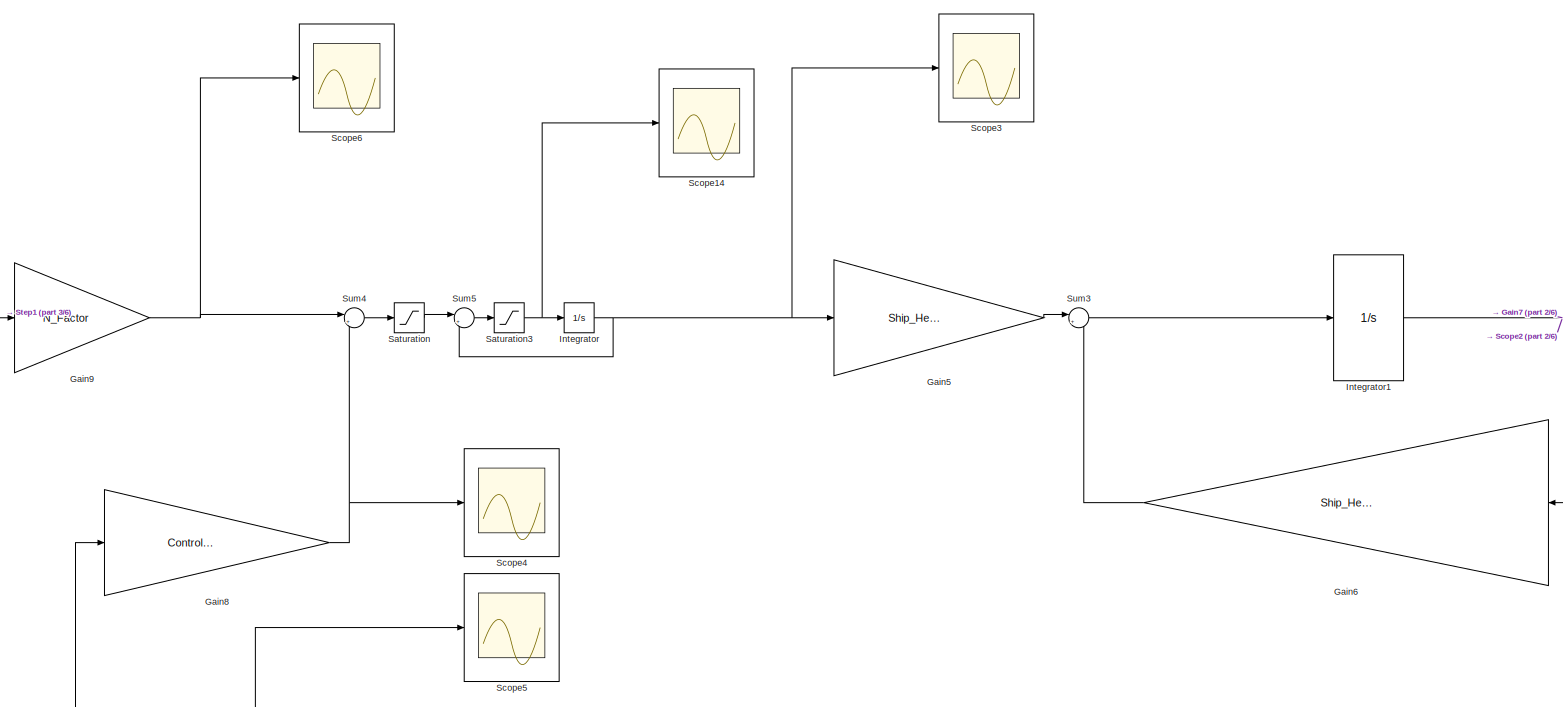
[diagram: root canvas - part 1/6, top center region]
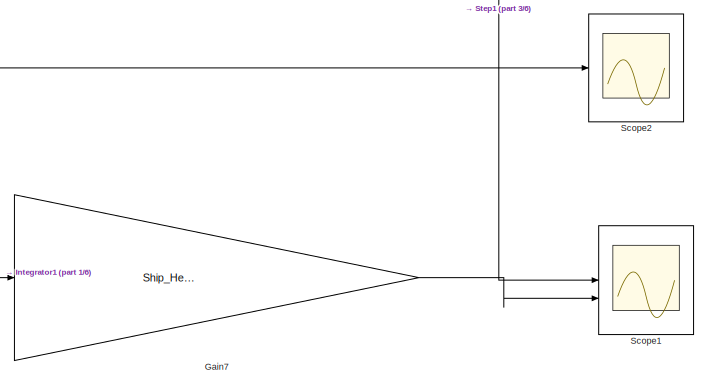
[diagram: root canvas - part 2/6, top right region]
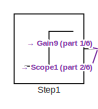
[diagram: root canvas - part 3/6, top left region]
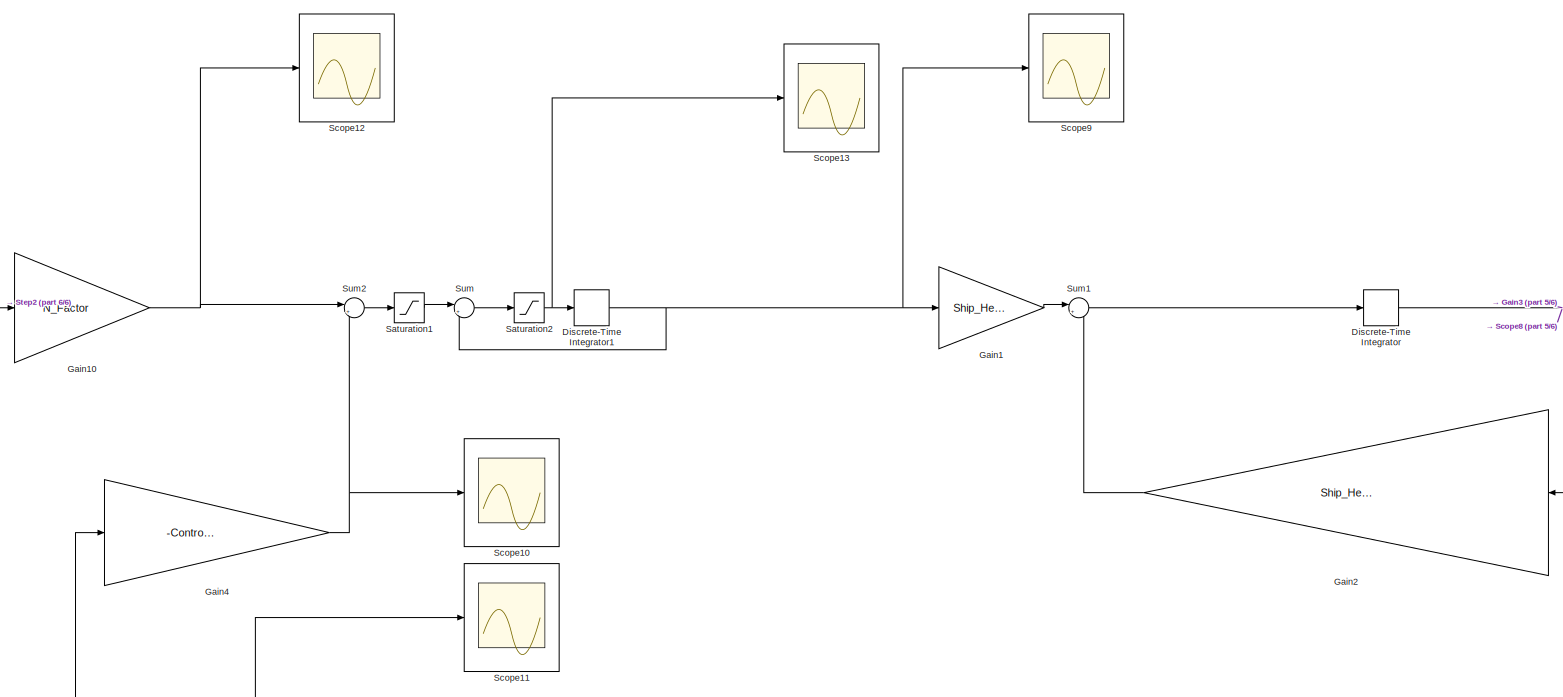
[diagram: root canvas - part 4/6, bottom center region]
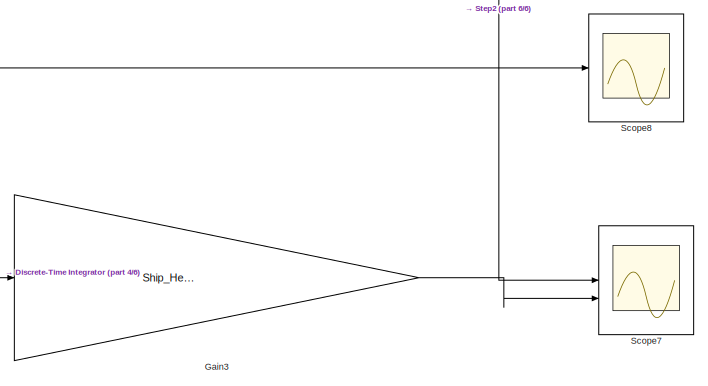
[diagram: root canvas - part 5/6, bottom right region]
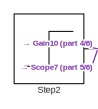
[diagram: root canvas - part 6/6, bottom left region]
MODEL slx_c05948c54876
KIND model
CONFIG AbsTol = auto
CONFIG EnableMultiTasking = off
CONFIG FixedStep = auto
CONFIG MaxStep = auto
CONFIG MinStep = auto
CONFIG RelTol = 1e-3
CONFIG SampleTimeConstraint = Unconstrained
CONFIG SolverName = VariableStepAuto
CONFIG StartTime = 0.0
CONFIG StopTime = 80
BLOCK [DiscreteIntegrator] Discrete-Time Integrator
  ICPrevOutput = DiscIntNeverNeededParam
  ICPrevScaledInput = DiscIntNeverNeededParam
  InitialCondition = [0;0]
  InitialConditionSetting = Auto
  SampleTime = T_s
BLOCK [DiscreteIntegrator] Discrete-Time Integrator1
  ICPrevOutput = DiscIntNeverNeededParam
  ICPrevScaledInput = DiscIntNeverNeededParam
  InitialConditionSetting = Auto
  SampleTime = T_s
BLOCK [Gain] Gain1
  Gain = Ship_Heading_To_Rudder_State_Space_Continuous.B
  Multiplication = Matrix(K*u)
BLOCK [Gain] Gain10
  Gain = N_Factor
BLOCK [Gain] Gain2
  Gain = Ship_Heading_To_Rudder_State_Space_Continuous.A
  Multiplication = Matrix(K*u)
BLOCK [Gain] Gain3
  Gain = Ship_Heading_To_Rudder_State_Space_Continuous.C
  Multiplication = Matrix(K*u)
BLOCK [Gain] Gain4
  Gain = -Controller_Continuous
  Multiplication = Matrix(K*u)
BLOCK [Gain] Gain5
  Gain = Ship_Heading_To_Rudder_State_Space_Continuous.B
  Multiplication = Matrix(K*u)
BLOCK [Gain] Gain6
  Gain = Ship_Heading_To_Rudder_State_Space_Continuous.A
  Multiplication = Matrix(K*u)
BLOCK [Gain] Gain7
  Gain = Ship_Heading_To_Rudder_State_Space_Continuous.C
  Multiplication = Matrix(K*u)
BLOCK [Gain] Gain8
  Gain = Controller_Continuous
  Multiplication = Matrix(K*u)
BLOCK [Gain] Gain9
  Gain = N_Factor
BLOCK [Integrator] Integrator
BLOCK [Integrator] Integrator1
  InitialCondition = [0;0]
BLOCK [Saturate] Saturation
  LowerLimit = -35*(pi/180)
  UpperLimit = +35*(pi/180)
BLOCK [Saturate] Saturation1
  LowerLimit = -35*(pi/180)
  UpperLimit = +35*(pi/180)
BLOCK [Saturate] Saturation2
  LowerLimit = -1*(pi/180)
  UpperLimit = 1*(pi/180)
BLOCK [Saturate] Saturation3
  LowerLimit = -7*(pi/180)
  UpperLimit = 7*(pi/180)
BLOCK [Scope] Scope1
  Floating = off
  NumInputPorts = 2
  ScopeSpecificationString = Simulink.scopes.TimeScopeBlockCfg('CurrentConfiguration', extmgr.ConfigurationSet(extmgr.Configuration('Core','General UI',true),extmgr.Configuration('Core','Source UI',true),extmgr.Configuration('Sources','WiredSimulink',true,'DataLoggingVariableName','ScopeData1'),extmgr.Configuration('Visuals','Time Domain',true,'SerializedDisplays',{struct('MinYLimReal','-0.11174','MaxYLimReal','1.00566','YLab...<+1536ch>
BLOCK [Scope] Scope10
  Floating = off
  NumInputPorts = 1
  ScopeSpecificationString = Simulink.scopes.TimeScopeBlockCfg('CurrentConfiguration', extmgr.ConfigurationSet(extmgr.Configuration('Core','General UI',true),extmgr.Configuration('Core','Source UI',true),extmgr.Configuration('Sources','WiredSimulink',true,'DataLoggingVariableName','ScopeData1'),extmgr.Configuration('Visuals','Time Domain',true,'SerializedDisplays',{struct('MinYLimReal','-32.80489','MaxYLimReal','3.64499','YLa...<+1532ch>
BLOCK [Scope] Scope11
  Floating = off
  NumInputPorts = 1
  ScopeSpecificationString = Simulink.scopes.TimeScopeBlockCfg('CurrentConfiguration', extmgr.ConfigurationSet(extmgr.Configuration('Core','General UI',true),extmgr.Configuration('Core','Source UI',true),extmgr.Configuration('Sources','WiredSimulink',true,'DataLoggingVariableName','ScopeData2'),extmgr.Configuration('Visuals','Time Domain',true,'SerializedDisplays',{struct('MinYLimReal','-0.98162','MaxYLimReal','0.10907','YLab...<+1552ch>
BLOCK [Scope] Scope12
  Floating = off
  NumInputPorts = 1
  ScopeSpecificationString = Simulink.scopes.TimeScopeBlockCfg('CurrentConfiguration', extmgr.ConfigurationSet(extmgr.Configuration('Core','General UI',true),extmgr.Configuration('Core','Source UI',true),extmgr.Configuration('Sources','WiredSimulink',true,'DataLoggingVariableName','ScopeData3'),extmgr.Configuration('Visuals','Time Domain',true,'SerializedDisplays',{struct('MinYLimReal','-0.0589','MaxYLimReal','0.00654','YLabe...<+1525ch>
BLOCK [Scope] Scope13
  Floating = off
  NumInputPorts = 1
  ScopeSpecificationString = Simulink.scopes.TimeScopeBlockCfg('CurrentConfiguration', extmgr.ConfigurationSet(extmgr.Configuration('Core','General UI',true),extmgr.Configuration('Core','Source UI',true),extmgr.Configuration('Sources','WiredSimulink',true,'DataLoggingVariableName','ScopeData7'),extmgr.Configuration('Visuals','Time Domain',true,'SerializedDisplays',{struct('MinYLimReal','-0.02099','MaxYLimReal','0.01438','YLab...<+1534ch>
BLOCK [Scope] Scope14
  Floating = off
  NumInputPorts = 1
  ScopeSpecificationString = Simulink.scopes.TimeScopeBlockCfg('CurrentConfiguration', extmgr.ConfigurationSet(extmgr.Configuration('Core','General UI',true),extmgr.Configuration('Core','Source UI',true),extmgr.Configuration('Sources','WiredSimulink',true,'DataLoggingVariableName','ScopeData8'),extmgr.Configuration('Visuals','Time Domain',true,'SerializedDisplays',{struct('MinYLimReal','-0.15272','MaxYLimReal','0.15272','YLab...<+1534ch>
BLOCK [Scope] Scope2
  Floating = off
  NumInputPorts = 1
  ScopeSpecificationString = Simulink.scopes.TimeScopeBlockCfg('CurrentConfiguration', extmgr.ConfigurationSet(extmgr.Configuration('Core','General UI',true),extmgr.Configuration('Core','Source UI',true),extmgr.Configuration('Sources','WiredSimulink',true,'DataLoggingVariableName','ScopeData2'),extmgr.Configuration('Visuals','Time Domain',true,'SerializedDisplays',{struct('MinYLimReal','-0.14216','MaxYLimReal','1.00904','YLab...<+1533ch>
BLOCK [Scope] Scope3
  Floating = off
  NumInputPorts = 1
  ScopeSpecificationString = Simulink.scopes.TimeScopeBlockCfg('CurrentConfiguration', extmgr.ConfigurationSet(extmgr.Configuration('Core','General UI',true),extmgr.Configuration('Core','Source UI',true),extmgr.Configuration('Sources','WiredSimulink',true),extmgr.Configuration('Visuals','Time Domain',true,'SerializedDisplays',{struct('MinYLimReal','-0.18844','MaxYLimReal','0.24649','YLabelReal','','MinYLimMag','0.00000','MaxY...<+1494ch>
BLOCK [Scope] Scope4
  Floating = off
  NumInputPorts = 1
  ScopeSpecificationString = Simulink.scopes.TimeScopeBlockCfg('CurrentConfiguration', extmgr.ConfigurationSet(extmgr.Configuration('Core','General UI',true),extmgr.Configuration('Core','Source UI',true),extmgr.Configuration('Sources','WiredSimulink',true,'DataLoggingVariableName','ScopeData3'),extmgr.Configuration('Visuals','Time Domain',true,'SerializedDisplays',{struct('MinYLimReal','-32.80489','MaxYLimReal','3.64499','YLa...<+1532ch>
BLOCK [Scope] Scope5
  Floating = off
  NumInputPorts = 1
  ScopeSpecificationString = Simulink.scopes.TimeScopeBlockCfg('CurrentConfiguration', extmgr.ConfigurationSet(extmgr.Configuration('Core','General UI',true),extmgr.Configuration('Core','Source UI',true),extmgr.Configuration('Sources','WiredSimulink',true,'DataLoggingVariableName','ScopeData4'),extmgr.Configuration('Visuals','Time Domain',true,'SerializedDisplays',{struct('MinYLimReal','-0.98162','MaxYLimReal','0.10907','YLab...<+1552ch>
BLOCK [Scope] Scope6
  Floating = off
  NumInputPorts = 1
  ScopeSpecificationString = Simulink.scopes.TimeScopeBlockCfg('CurrentConfiguration', extmgr.ConfigurationSet(extmgr.Configuration('Core','General UI',true),extmgr.Configuration('Core','Source UI',true),extmgr.Configuration('Sources','WiredSimulink',true,'DataLoggingVariableName','ScopeData5'),extmgr.Configuration('Visuals','Time Domain',true,'SerializedDisplays',{struct('MinYLimReal','-31.04559','MaxYLimReal','3.44951','YLa...<+1532ch>
BLOCK [Scope] Scope7
  Floating = off
  NumInputPorts = 2
  ScopeSpecificationString = Simulink.scopes.TimeScopeBlockCfg('CurrentConfiguration', extmgr.ConfigurationSet(extmgr.Configuration('Core','General UI',true),extmgr.Configuration('Core','Source UI',true),extmgr.Configuration('Sources','WiredSimulink',true,'DataLoggingVariableName','ScopeData4'),extmgr.Configuration('Visuals','Time Domain',true,'SerializedDisplays',{struct('MinYLimReal','-0.10908','MaxYLimReal','0.98175','YLab...<+1536ch>
BLOCK [Scope] Scope8
  Floating = off
  NumInputPorts = 1
  ScopeSpecificationString = Simulink.scopes.TimeScopeBlockCfg('CurrentConfiguration', extmgr.ConfigurationSet(extmgr.Configuration('Core','General UI',true),extmgr.Configuration('Core','Source UI',true),extmgr.Configuration('Sources','WiredSimulink',true,'DataLoggingVariableName','ScopeData5'),extmgr.Configuration('Visuals','Time Domain',true,'SerializedDisplays',{struct('MinYLimReal','-0.10344','MaxYLimReal','0.93093','YLab...<+1559ch>
BLOCK [Scope] Scope9
  Floating = off
  NumInputPorts = 1
  ScopeSpecificationString = Simulink.scopes.TimeScopeBlockCfg('CurrentConfiguration', extmgr.ConfigurationSet(extmgr.Configuration('Core','General UI',true),extmgr.Configuration('Core','Source UI',true),extmgr.Configuration('Sources','WiredSimulink',true,'DataLoggingVariableName','ScopeData6'),extmgr.Configuration('Visuals','Time Domain',true,'SerializedDisplays',{struct('MinYLimReal','-0.02437','MaxYLimReal','0.03098','YLab...<+1548ch>
BLOCK [Step] Step1
  After = 50*(pi/180)
  SampleTime = 0
BLOCK [Step] Step2
  After = 50*(pi/180)
  SampleTime = 0
BLOCK [Sum] Sum
  Inputs = |+-
BLOCK [Sum] Sum1
  Inputs = |++
BLOCK [Sum] Sum2
  Inputs = |+-
BLOCK [Sum] Sum3
  Inputs = |++
BLOCK [Sum] Sum4
  Inputs = |++
BLOCK [Sum] Sum5
  Inputs = |+-
NET Discrete-Time Integrator1:1 -> Gain1:1, Scope9:1, Sum:2
NET Discrete-Time Integrator:1 -> Gain2:1, Gain3:1, Gain4:1, Scope11:1, Scope8:1
NET Gain10:1 -> Scope12:1, Sum2:1
LINE Gain1:1 -> Sum1:1
LINE Gain2:1 -> Sum1:2
LINE Gain3:1 -> Scope7:2
NET Gain4:1 -> Scope10:1, Sum2:2
LINE Gain5:1 -> Sum3:1
LINE Gain6:1 -> Sum3:2
LINE Gain7:1 -> Scope1:2
NET Gain8:1 -> Scope4:1, Sum4:2
NET Gain9:1 -> Scope6:1, Sum4:1
NET Integrator1:1 -> Gain6:1, Gain7:1, Gain8:1, Scope2:1, Scope5:1
NET Integrator:1 -> Gain5:1, Scope3:1, Sum5:2
LINE Saturation1:1 -> Sum:1
NET Saturation2:1 -> Discrete-Time Integrator1:1, Scope13:1
NET Saturation3:1 -> Integrator:1, Scope14:1
LINE Saturation:1 -> Sum5:1
NET Step1:1 -> Gain9:1, Scope1:1
NET Step2:1 -> Gain10:1, Scope7:1
LINE Sum1:1 -> Discrete-Time Integrator:1
LINE Sum2:1 -> Saturation1:1
LINE Sum3:1 -> Integrator1:1
LINE Sum4:1 -> Saturation:1
LINE Sum5:1 -> Saturation3:1
LINE Sum:1 -> Saturation2:1
note: NET lines group one-source signal fan-out (src -> all destinations, sorted); 1:1 wires keep LINE
